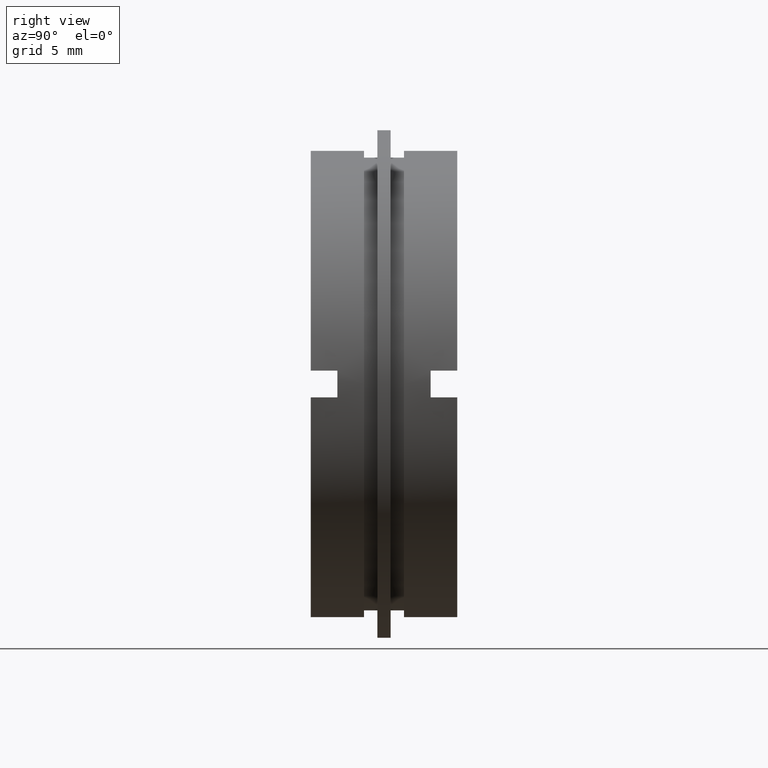
[diagram: clean part render]
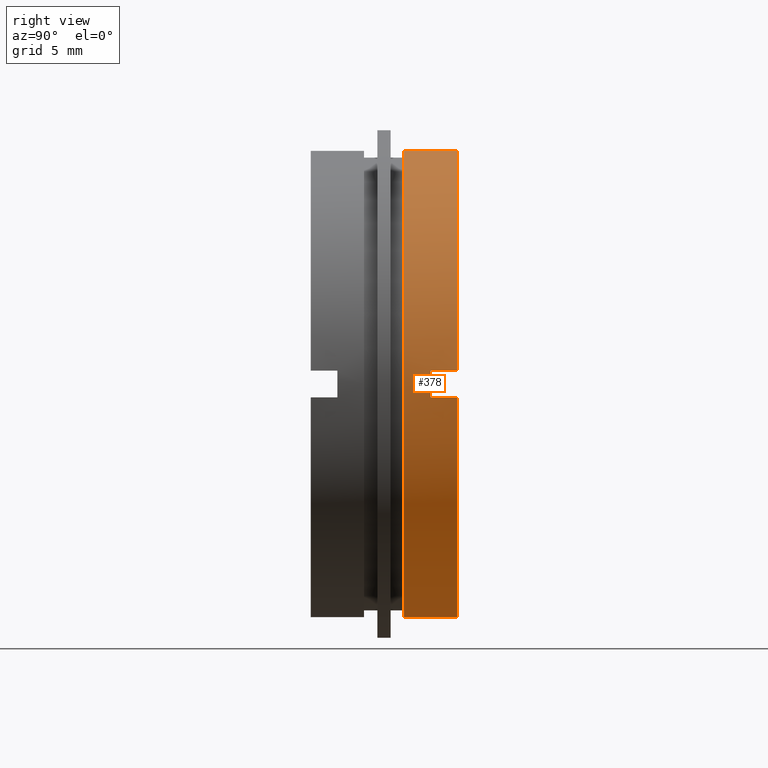
[diagram: same view with one face highlighted and labeled with its STEP entity id]
A machine part, right view. The second image highlights one B-rep face of the part: STEP entity #378.
In plain terms, the highlighted cylindrical surface (partial cylindrical patch) has radius 17.5 mm, axis along (-0, 1, -0).
Its self-contained STEP definition (entity closure, byte-faithful):
#18 = FACE_OUTER_BOUND ( 'NONE', #247, .T. ) ;
#26 = DIRECTION ( 'NONE',  ( 0.0000000000000000000, -1.000000000000000000, 0.0000000000000000000 ) ) ;
#69 = VERTEX_POINT ( 'NONE', #552 ) ;
#93 = AXIS2_PLACEMENT_3D ( 'NONE', #720, #564, #229 ) ;
#97 = ORIENTED_EDGE ( 'NONE', *, *, #1119, .F. ) ;
#100 = LINE ( 'NONE', #211, #767 ) ;
#132 = CIRCLE ( 'NONE', #93, 17.50000000000000000 ) ;
#149 = EDGE_CURVE ( 'NONE', #1005, #763, #132, .T. ) ;
#151 = ORIENTED_EDGE ( 'NONE', *, *, #149, .T. ) ;
#161 = DIRECTION ( 'NONE',  ( 0.0000000000000000000, 1.000000000000000000, 0.0000000000000000000 ) ) ;
#191 = LINE ( 'NONE', #842, #275 ) ;
#206 = VERTEX_POINT ( 'NONE', #1067 ) ;
#209 = AXIS2_PLACEMENT_3D ( 'NONE', #570, #1027, #948 ) ;
#211 = CARTESIAN_POINT ( 'NONE',  ( 0.0000000000000000000, 22.67749945107591400, 17.50000000000000000 ) ) ;
#227 = DIRECTION ( 'NONE',  ( 0.0000000000000000000, 0.0000000000000000000, 1.000000000000000000 ) ) ;
#229 = DIRECTION ( 'NONE',  ( 0.0000000000000000000, 0.0000000000000000000, 1.000000000000000000 ) ) ;
#240 = DIRECTION ( 'NONE',  ( -0.0000000000000000000, 1.000000000000000000, -0.0000000000000000000 ) ) ;
#247 = EDGE_LOOP ( 'NONE', ( #151, #550, #867, #97, #1104, #945, #377, #589 ) ) ;
#251 = VERTEX_POINT ( 'NONE', #540 ) ;
#275 = VECTOR ( 'NONE', #240, 1000.000000000000000 ) ;
#280 = VERTEX_POINT ( 'NONE', #616 ) ;
#321 = DIRECTION ( 'NONE',  ( -0.0000000000000000000, 1.000000000000000000, -0.0000000000000000000 ) ) ;
#342 = AXIS2_PLACEMENT_3D ( 'NONE', #779, #161, #685 ) ;
#360 = CIRCLE ( 'NONE', #812, 17.50000000000000000 ) ;
#376 = CARTESIAN_POINT ( 'NONE',  ( 17.47140520965614700, 22.67749945107591400, 1.000000000000003100 ) ) ;
#377 = ORIENTED_EDGE ( 'NONE', *, *, #1057, .F. ) ;
#378 = ADVANCED_FACE ( 'NONE', ( #18 ), #717, .T. ) ;
#395 = DIRECTION ( 'NONE',  ( -0.0000000000000000000, 1.000000000000000000, -0.0000000000000000000 ) ) ;
#409 = DIRECTION ( 'NONE',  ( 0.0000000000000000000, 0.0000000000000000000, 1.000000000000000000 ) ) ;
#434 = EDGE_CURVE ( 'NONE', #703, #280, #607, .T. ) ;
#468 = EDGE_CURVE ( 'NONE', #763, #69, #191, .T. ) ;
#540 = CARTESIAN_POINT ( 'NONE',  ( 0.0000000000000000000, 11.00000000000000000, 17.50000000000000000 ) ) ;
#550 = ORIENTED_EDGE ( 'NONE', *, *, #468, .T. ) ;
#552 = CARTESIAN_POINT ( 'NONE',  ( 2.143131898507868200E-015, 11.00000000000000000, -17.50000000000000000 ) ) ;
#564 = DIRECTION ( 'NONE',  ( -0.0000000000000000000, 1.000000000000000000, -0.0000000000000000000 ) ) ;
#570 = CARTESIAN_POINT ( 'NONE',  ( 0.0000000000000000000, 11.00000000000000000, 0.0000000000000000000 ) ) ;
#589 = ORIENTED_EDGE ( 'NONE', *, *, #852, .F. ) ;
#593 = CARTESIAN_POINT ( 'NONE',  ( 0.0000000000000000000, 11.00000000000000000, 0.0000000000000000000 ) ) ;
#607 = CIRCLE ( 'NONE', #342, 17.50000000000000000 ) ;
#616 = CARTESIAN_POINT ( 'NONE',  ( 17.47140520965614700, 9.000000000000000000, -0.9999999999999974500 ) ) ;
#678 = VECTOR ( 'NONE', #1014, 1000.000000000000000 ) ;
#685 = DIRECTION ( 'NONE',  ( 0.0000000000000000000, 0.0000000000000000000, -1.000000000000000000 ) ) ;
#698 = LINE ( 'NONE', #1042, #678 ) ;
#703 = VERTEX_POINT ( 'NONE', #1036 ) ;
#713 = CARTESIAN_POINT ( 'NONE',  ( 0.0000000000000000000, 22.67749945107591400, 0.0000000000000000000 ) ) ;
#716 = VECTOR ( 'NONE', #26, 1000.000000000000000 ) ;
#717 = CYLINDRICAL_SURFACE ( 'NONE', #1112, 17.50000000000000000 ) ;
#720 = CARTESIAN_POINT ( 'NONE',  ( 0.0000000000000000000, 6.999999999999999100, 0.0000000000000000000 ) ) ;
#763 = VERTEX_POINT ( 'NONE', #1090 ) ;
#767 = VECTOR ( 'NONE', #321, 1000.000000000000000 ) ;
#779 = CARTESIAN_POINT ( 'NONE',  ( 0.0000000000000000000, 9.000000000000000000, 0.0000000000000000000 ) ) ;
#784 = CIRCLE ( 'NONE', #209, 17.50000000000000000 ) ;
#812 = AXIS2_PLACEMENT_3D ( 'NONE', #593, #395, #409 ) ;
#818 = LINE ( 'NONE', #376, #716 ) ;
#828 = CARTESIAN_POINT ( 'NONE',  ( 17.47140520965614700, 11.00000000000000000, -1.000000000000000000 ) ) ;
#842 = CARTESIAN_POINT ( 'NONE',  ( 2.143131898507868200E-015, 22.67749945107591400, -17.50000000000000000 ) ) ;
#847 = EDGE_CURVE ( 'NONE', #1048, #69, #360, .T. ) ;
#852 = EDGE_CURVE ( 'NONE', #1005, #251, #100, .T. ) ;
#867 = ORIENTED_EDGE ( 'NONE', *, *, #847, .F. ) ;
#868 = DIRECTION ( 'NONE',  ( -0.0000000000000000000, 1.000000000000000000, -0.0000000000000000000 ) ) ;
#945 = ORIENTED_EDGE ( 'NONE', *, *, #1056, .F. ) ;
#948 = DIRECTION ( 'NONE',  ( 0.0000000000000000000, 0.0000000000000000000, 1.000000000000000000 ) ) ;
#1005 = VERTEX_POINT ( 'NONE', #1028 ) ;
#1014 = DIRECTION ( 'NONE',  ( -0.0000000000000000000, 1.000000000000000000, -0.0000000000000000000 ) ) ;
#1027 = DIRECTION ( 'NONE',  ( -0.0000000000000000000, 1.000000000000000000, -0.0000000000000000000 ) ) ;
#1028 = CARTESIAN_POINT ( 'NONE',  ( 0.0000000000000000000, 6.999999999999999100, 17.50000000000000000 ) ) ;
#1036 = CARTESIAN_POINT ( 'NONE',  ( 17.47140520965614700, 9.000000000000000000, 1.000000000000001100 ) ) ;
#1042 = CARTESIAN_POINT ( 'NONE',  ( 17.47140520965614700, 22.67749945107591400, -1.000000000000000000 ) ) ;
#1048 = VERTEX_POINT ( 'NONE', #828 ) ;
#1056 = EDGE_CURVE ( 'NONE', #206, #703, #818, .T. ) ;
#1057 = EDGE_CURVE ( 'NONE', #251, #206, #784, .T. ) ;
#1067 = CARTESIAN_POINT ( 'NONE',  ( 17.47140520965614700, 11.00000000000000000, 1.000000000000003100 ) ) ;
#1090 = CARTESIAN_POINT ( 'NONE',  ( 2.143131898507868200E-015, 6.999999999999999100, -17.50000000000000000 ) ) ;
#1104 = ORIENTED_EDGE ( 'NONE', *, *, #434, .F. ) ;
#1112 = AXIS2_PLACEMENT_3D ( 'NONE', #713, #868, #227 ) ;
#1119 = EDGE_CURVE ( 'NONE', #280, #1048, #698, .T. ) ;